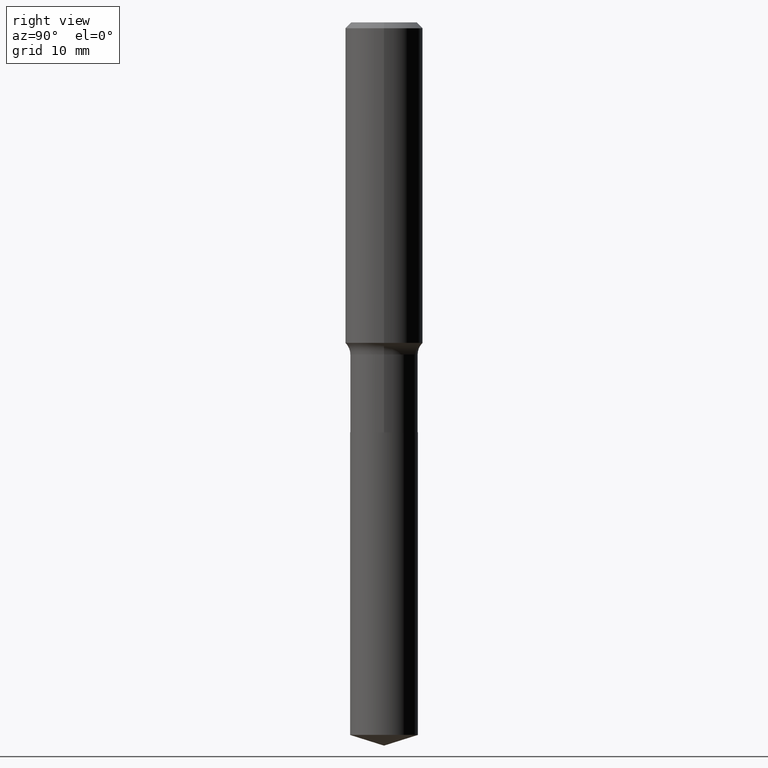
[diagram: clean part render]
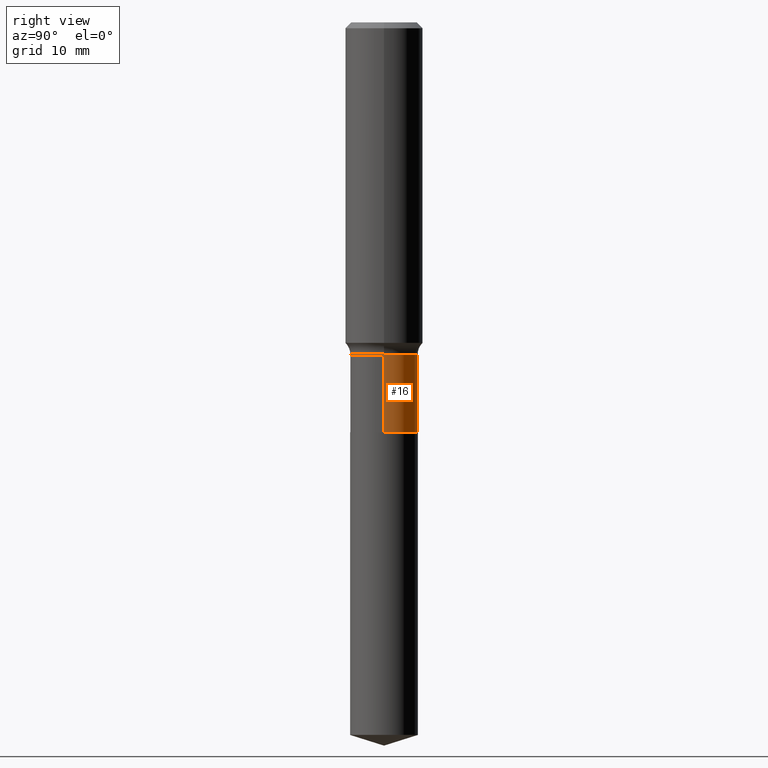
[diagram: same view with one face highlighted and labeled with its STEP entity id]
A machine part, right view. The second image highlights one B-rep face of the part: STEP entity #16.
In plain terms, the highlighted cylindrical surface (edge-blend (fillet) strip) has radius 4.1669 mm, axis along (-0, 0, 1).
Its self-contained STEP definition (entity closure, byte-faithful):
#1 = EDGE_CURVE ( 'NONE', #158, #292, #393, .T. ) ;
#15 = DIRECTION ( 'NONE',  ( -2.445468806185136597E-29, 3.491481338843145583E-15, 1.000000000000000000 ) ) ;
#16 = ADVANCED_FACE ( 'NONE', ( #252 ), #94, .T. ) ;
#21 = CIRCLE ( 'NONE', #295, 0.1640499999999999459 ) ;
#27 = ORIENTED_EDGE ( 'NONE', *, *, #101, .F. ) ;
#37 = CARTESIAN_POINT ( 'NONE',  ( -0.1640499999999999459, -5.102960237744538944E-15, -1.983799999999999786 ) ) ;
#47 = EDGE_LOOP ( 'NONE', ( #416, #82, #332, #27 ) ) ;
#56 = DIRECTION ( 'NONE',  ( 1.000000000000000000, -6.982962677686266711E-15, 0.000000000000000000 ) ) ;
#79 = DIRECTION ( 'NONE',  ( -2.445468806185136597E-29, 3.491481338843145583E-15, 1.000000000000000000 ) ) ;
#82 = ORIENTED_EDGE ( 'NONE', *, *, #225, .T. ) ;
#94 = CYLINDRICAL_SURFACE ( 'NONE', #173, 0.1640499999999999459 ) ;
#101 = EDGE_CURVE ( 'NONE', #158, #179, #440, .T. ) ;
#115 = VECTOR ( 'NONE', #190, 39.37007874015748143 ) ;
#158 = VERTEX_POINT ( 'NONE', #432 ) ;
#162 = CARTESIAN_POINT ( 'NONE',  ( 3.929868371539514524E-29, -5.610810511520934140E-15, -1.606999999999999762 ) ) ;
#164 = DIRECTION ( 'NONE',  ( -2.445468806185136597E-29, 3.491481338843145583E-15, 1.000000000000000000 ) ) ;
#173 = AXIS2_PLACEMENT_3D ( 'NONE', #208, #164, #402 ) ;
#179 = VERTEX_POINT ( 'NONE', #335 ) ;
#190 = DIRECTION ( 'NONE',  ( -2.445468806185136877E-29, 3.491481338843145188E-15, 1.000000000000000000 ) ) ;
#204 = CARTESIAN_POINT ( 'NONE',  ( 0.1640499999999999459, -1.145555027274431860E-15, 7.999368000693230140E-30 ) ) ;
#208 = CARTESIAN_POINT ( 'NONE',  ( 0.000000000000000000, 0.000000000000000000, 0.000000000000000000 ) ) ;
#223 = CARTESIAN_POINT ( 'NONE',  ( -0.1640499999999999459, 1.165645358014443970E-15, -8.069513015563170763E-30 ) ) ;
#225 = EDGE_CURVE ( 'NONE', #292, #336, #264, .T. ) ;
#252 = FACE_OUTER_BOUND ( 'NONE', #47, .T. ) ;
#264 = LINE ( 'NONE', #223, #115 ) ;
#268 = CARTESIAN_POINT ( 'NONE',  ( 4.851321017710073264E-29, -6.926400679997031294E-15, -1.983799999999999786 ) ) ;
#282 = DIRECTION ( 'NONE',  ( -2.445468806185136877E-29, 3.491481338843145188E-15, 1.000000000000000000 ) ) ;
#292 = VERTEX_POINT ( 'NONE', #37 ) ;
#295 = AXIS2_PLACEMENT_3D ( 'NONE', #162, #15, #315 ) ;
#315 = DIRECTION ( 'NONE',  ( 1.000000000000000000, -6.982962677686266711E-15, 0.000000000000000000 ) ) ;
#332 = ORIENTED_EDGE ( 'NONE', *, *, #427, .F. ) ;
#335 = CARTESIAN_POINT ( 'NONE',  ( 0.1640499999999999459, -6.756365538795365803E-15, -1.606999999999999762 ) ) ;
#336 = VERTEX_POINT ( 'NONE', #419 ) ;
#358 = AXIS2_PLACEMENT_3D ( 'NONE', #268, #79, #56 ) ;
#393 = CIRCLE ( 'NONE', #358, 0.1640499999999999459 ) ;
#402 = DIRECTION ( 'NONE',  ( 1.000000000000000000, -6.982962677686267499E-15, 4.876176775795935793E-29 ) ) ;
#416 = ORIENTED_EDGE ( 'NONE', *, *, #1, .T. ) ;
#419 = CARTESIAN_POINT ( 'NONE',  ( -0.1640499999999999459, -5.102960237744538944E-15, -1.606999999999999762 ) ) ;
#427 = EDGE_CURVE ( 'NONE', #179, #336, #21, .T. ) ;
#432 = CARTESIAN_POINT ( 'NONE',  ( 0.1640499999999999459, -8.071955707271462957E-15, -1.983799999999999786 ) ) ;
#440 = LINE ( 'NONE', #204, #459 ) ;
#459 = VECTOR ( 'NONE', #282, 39.37007874015748143 ) ;